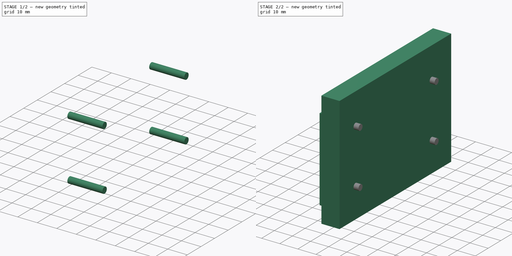
[diagram: build sequence overview — one tinted view per stage of 2, left to right]
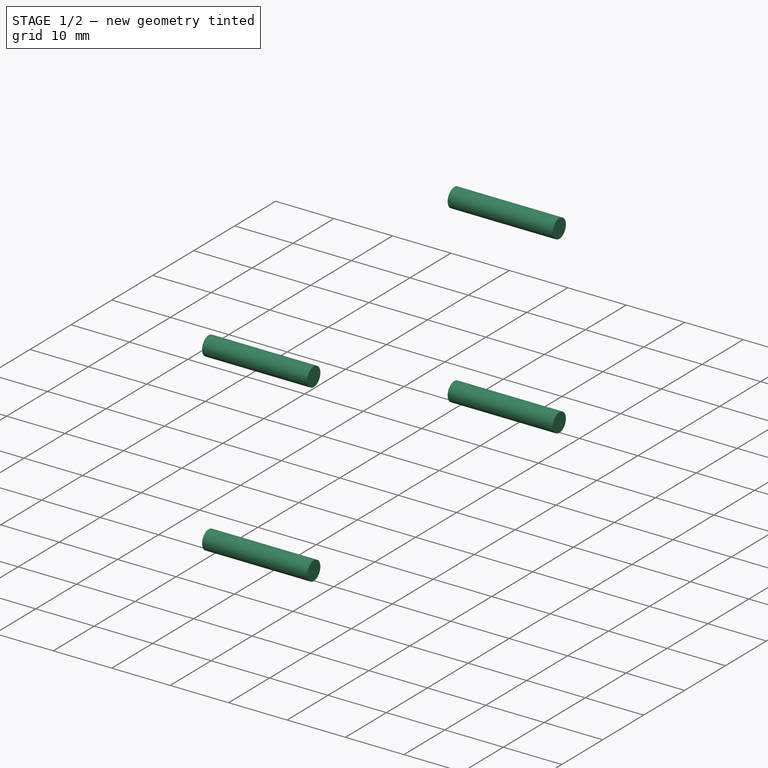
[diagram: stage 1 of 2 — iso view after this stage's code; geometry added in this stage tinted green]
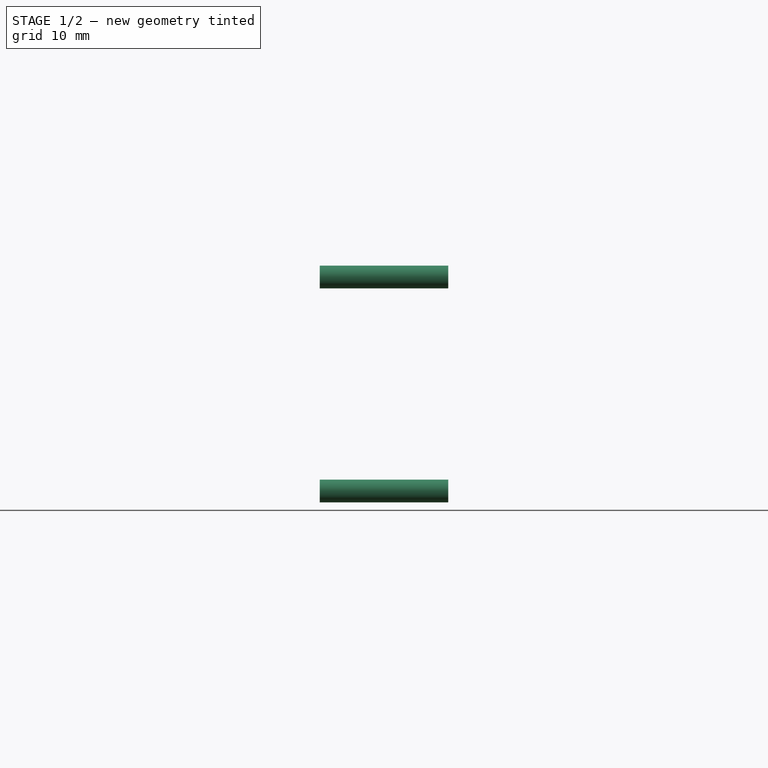
[diagram: stage 1 of 2 — front view after this stage's code; geometry added in this stage tinted green]
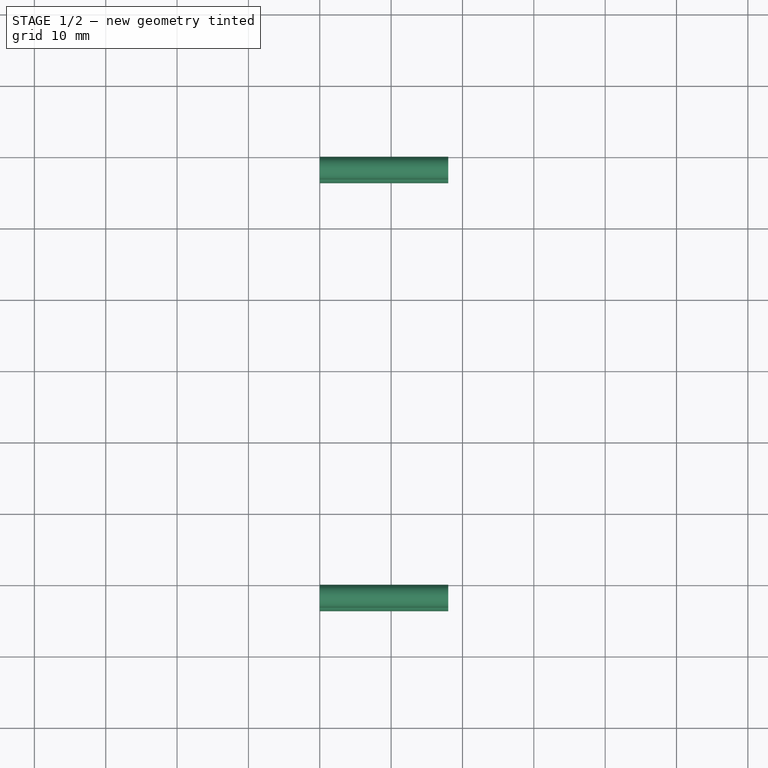
[diagram: stage 1 of 2 — top view after this stage's code; geometry added in this stage tinted green]
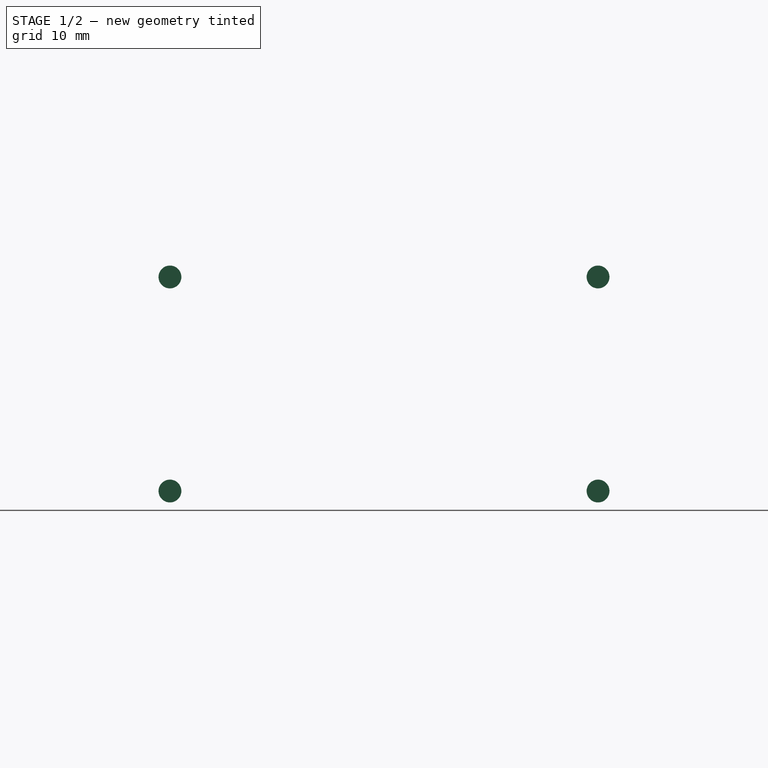
[diagram: stage 1 of 2 — right view after this stage's code; geometry added in this stage tinted green]
FCSTD DOCUMENT  (FreeCAD 0.17R13522 (Git))
Label: PlateX_02
License: All rights reserved
LicenseURL: http://en.wikipedia.org/wiki/All_rights_reserved
objects: Sketcher::SketchObject×2, Part::Extrusion×2, PartDesign::Body×1
note: 5 computed .brp shape members not serialized (recipe doc carries the construction recipe); baked Part::Feature solids carry a one-line shape summary decoded from their .brp

FEATURE [Sketcher::SketchObject] Sketch001
  MapMode = 5
  Placement = pos=(0,0,0) rot=(0.57735,0.57735,0.57735;2.0944rad)
  Support = -> [YZ_Plane]
  sketch-geometry (8):
    g0: Circle CenterX=-52.0346 CenterY=60.9435 CenterZ=0 NormalX=0 NormalY=0 NormalZ=1 AngleXU=0 Radius=1.6
    g1: Circle CenterX=7.96544 CenterY=60.9435 CenterZ=0 NormalX=0 NormalY=0 NormalZ=1 AngleXU=0 Radius=1.6
    g2: Circle CenterX=-52.0346 CenterY=30.9435 CenterZ=0 NormalX=0 NormalY=0 NormalZ=1 AngleXU=0 Radius=1.6
    g3: Circle CenterX=7.96544 CenterY=30.9435 CenterZ=0 NormalX=0 NormalY=0 NormalZ=1 AngleXU=0 Radius=1.6
    g4: GeomPoint X=23.3379 Y=78.2379 Z=0
    g5: GeomPoint X=-64.6621 Y=78.2379 Z=0
    g6: GeomPoint X=-64.6621 Y=14.3379 Z=0
    g7: GeomPoint X=23.3379 Y=14.3379 Z=0
  constraints (16):
    c: Radius(g0) = 1.6
    c: Equal(g2,g3)
    c: Equal(g3,g1)
    c: Equal(g1,g0)
    c: Vertical(g0,g2)
    c: Horizontal(g1,g0)
    c: Horizontal(g3,g2)
    c: Vertical(g1,g3)
    c: Distance(g0,g2) = 30
    c: Distance(g2,g3) = 60
    c: DistanceX(g6,g5) = 0
    c: DistanceY(g6,g5) = 63.9
    c: DistanceX(g4,g7) = 0
    c: DistanceY(g4,g7) = -63.9
    c: DistanceX(g4,g5) = -88
    c: DistanceY(g4,g5) = 0
FEATURE [PartDesign::Body] Body
  Group = -> [Sketch001]
  Origin = -> Origin
  Placement = pos=(40,0,0) rot=(0,0,1;0rad)
FEATURE [Part::Extrusion] Extrude001
  Base = -> Sketch001
  Dir = (1,0,0)
  DirMode = 2
  FaceMakerClass = Part::FaceMakerBullseye
  LengthFwd = 18
  LengthRev = 0
  Solid = true
  Symmetric = false
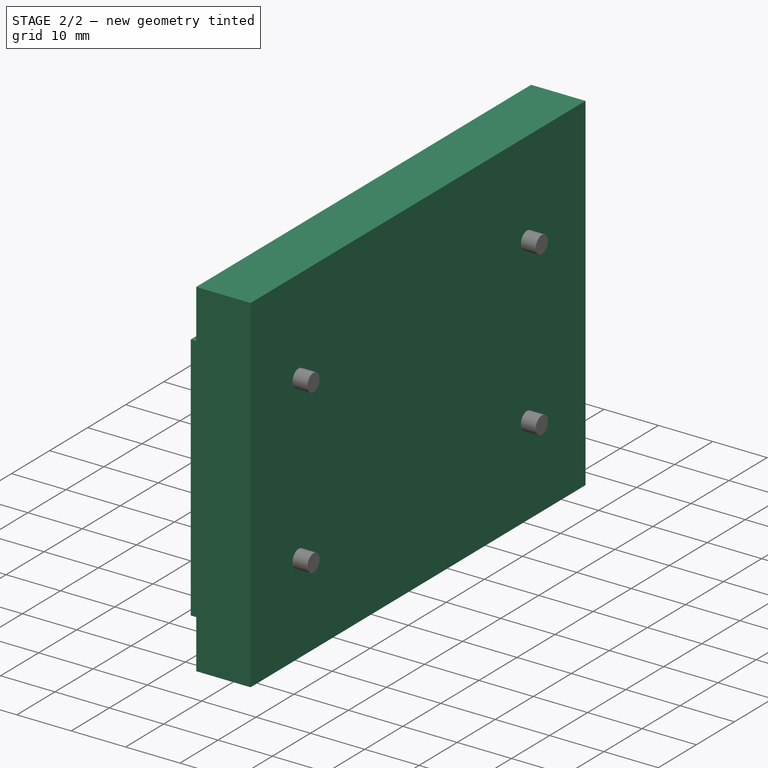
[diagram: stage 2 of 2 — iso view after this stage's code; geometry added in this stage tinted green]
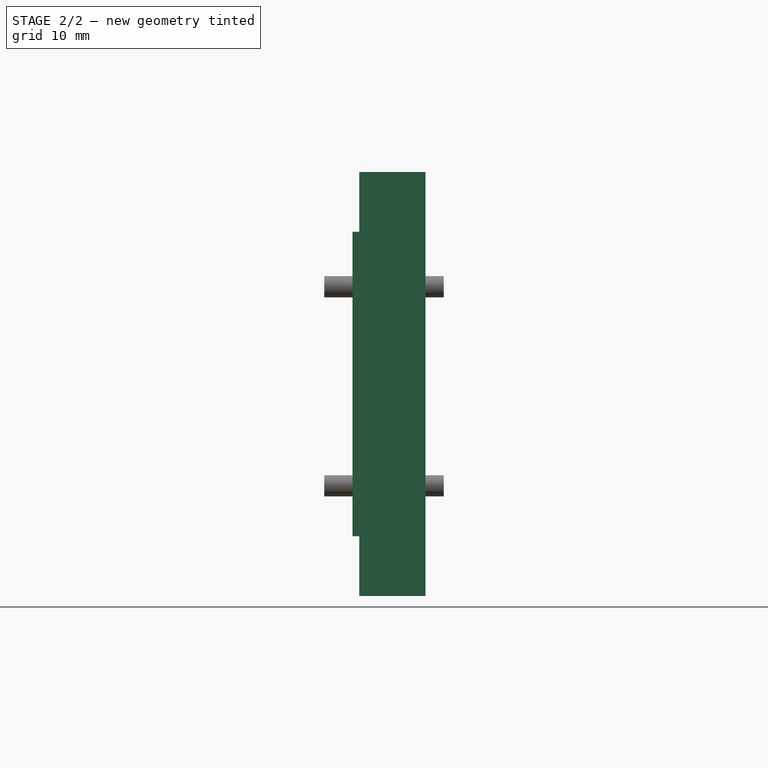
[diagram: stage 2 of 2 — front view after this stage's code; geometry added in this stage tinted green]
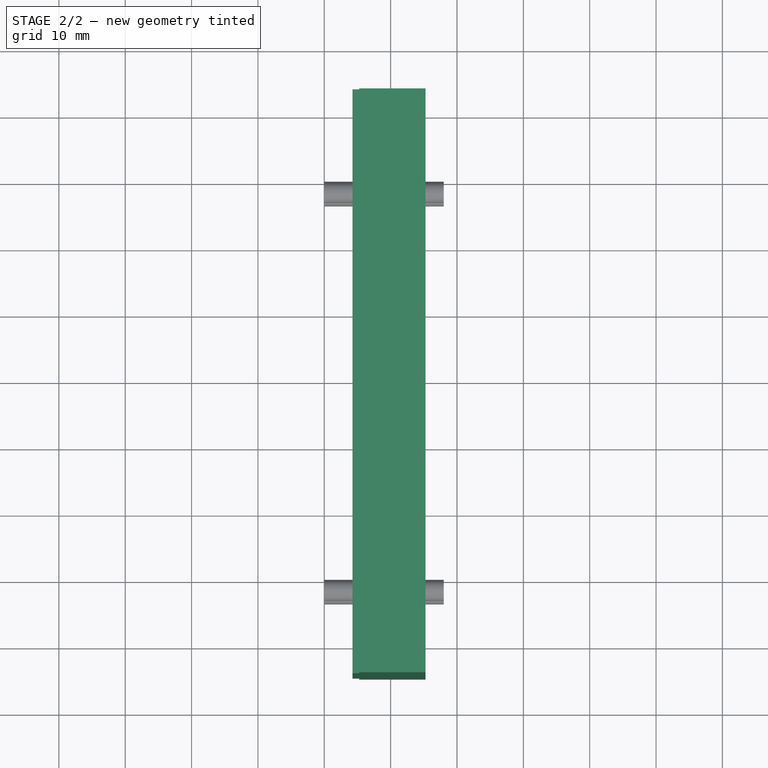
[diagram: stage 2 of 2 — top view after this stage's code; geometry added in this stage tinted green]
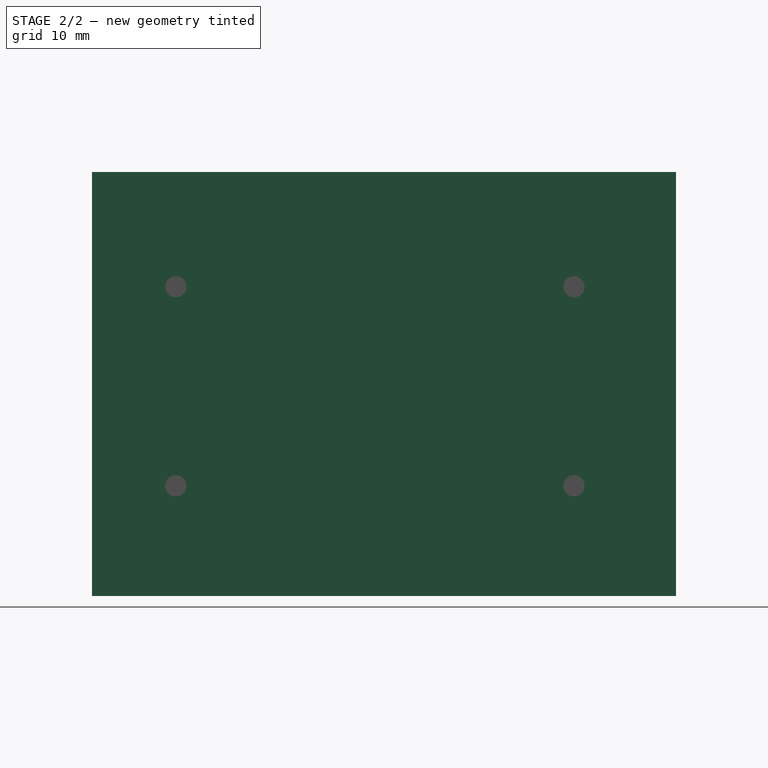
[diagram: stage 2 of 2 — right view after this stage's code; geometry added in this stage tinted green]
FEATURE [Sketcher::SketchObject] Sketch
  MapMode = 7
  Placement = pos=(40.1304,23.3379,0) rot=(1,0,0;1.5708rad)
  sketch-geometry (8):
    g0: LineSegment StartX=40.1304 StartY=23.3379 StartZ=0 EndX=40.1304 EndY=69.2379 EndZ=0
    g1: LineSegment StartX=40.1304 StartY=69.2379 StartZ=0 EndX=41.1304 EndY=69.2379 EndZ=0
    g2: LineSegment StartX=41.1304 StartY=69.2379 StartZ=0 EndX=41.1304 EndY=78.2379 EndZ=0
    g3: LineSegment StartX=41.1304 StartY=78.2379 StartZ=0 EndX=51.1304 EndY=78.2379 EndZ=0
    g4: LineSegment StartX=51.1304 StartY=78.2379 StartZ=0 EndX=51.1304 EndY=14.3379 EndZ=0
    g5: LineSegment StartX=51.1304 StartY=14.3379 StartZ=0 EndX=41.1304 EndY=14.3379 EndZ=0
    g6: LineSegment StartX=41.1304 StartY=14.3379 StartZ=0 EndX=41.1304 EndY=23.3379 EndZ=0
    g7: LineSegment StartX=41.1304 StartY=23.3379 StartZ=0 EndX=40.1304 EndY=23.3379 EndZ=0
  constraints (23):
    c: Vertical(g0)
    c: Coincident(g0,g1)
    c: Horizontal(g1)
    c: Coincident(g1,g2)
    c: Coincident(g2,g3)
    c: Horizontal(g3)
    c: Coincident(g3,g4)
    c: Coincident(g4,g5)
    c: Coincident(g5,g6)
    c: Vertical(g6)
    c: Coincident(g6,g7)
    c: Coincident(g7,g0)
    c: Vertical(g2)
    c: Vertical(g4)
    c: Horizontal(g5)
    c: Horizontal(g7)
    c: Equal(g2,g6)
    c: Equal(g3,g5)
    c: Equal(g1,g7)
    c: DistanceY(g0,g0) = 45.9
    c: DistanceY(g2,g2) = 9
    c: DistanceX(g7,g7) = 1
    c: DistanceX(g3,g3) = 10
FEATURE [Part::Extrusion] Extrude  label="PlateX_02"
  Base = -> Sketch
  Dir = (0,-1,0)
  DirMode = 2
  FaceMakerClass = Part::FaceMakerBullseye
  LengthFwd = 88
  LengthRev = 0
  Placement = pos=(-76,0,0) rot=(0,0,1;0rad)
  Solid = true
  Symmetric = false
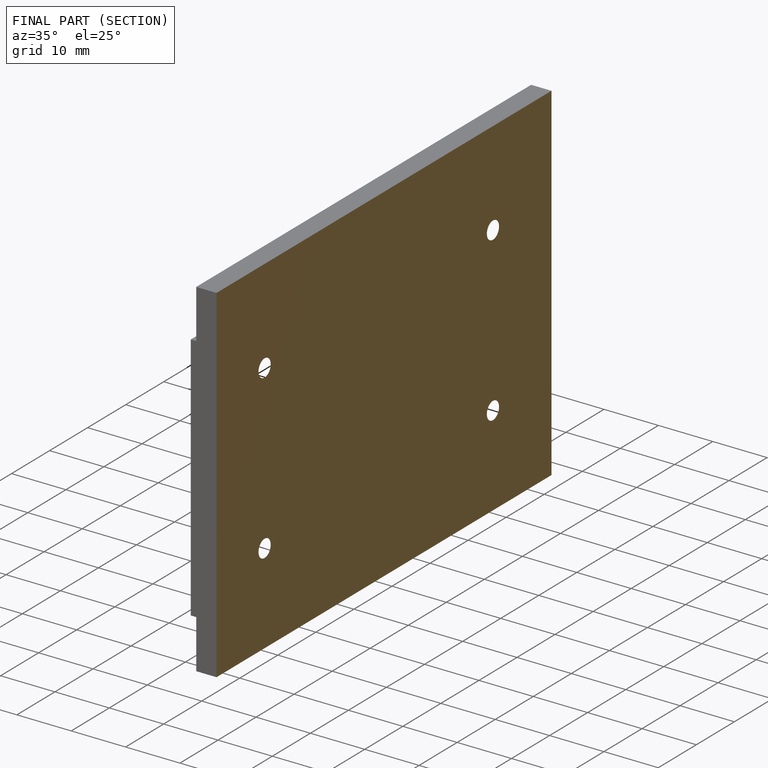
[diagram: finished part — half-section view (interior)]
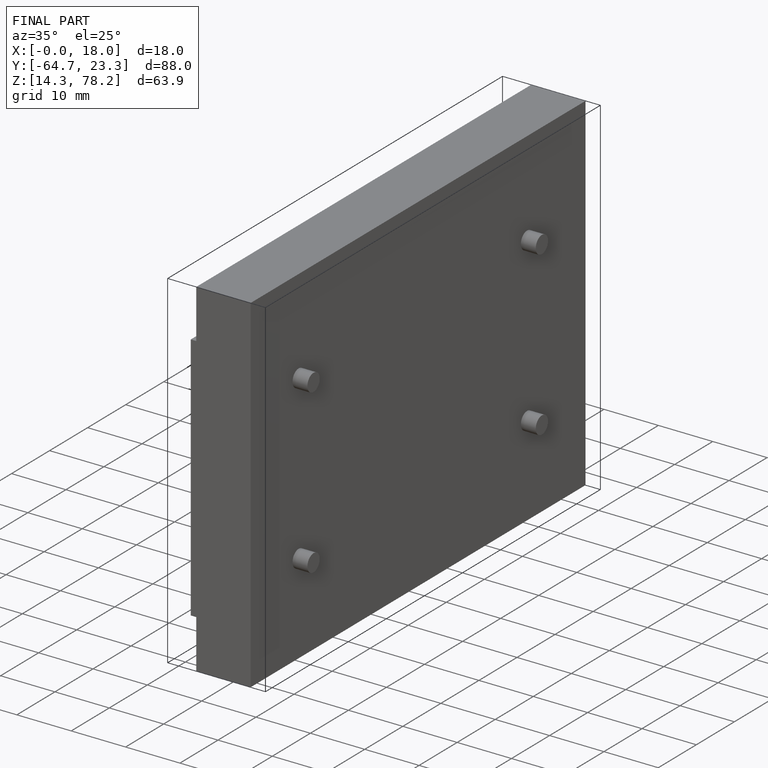
[diagram: finished part — iso view with bounding-box wireframe]
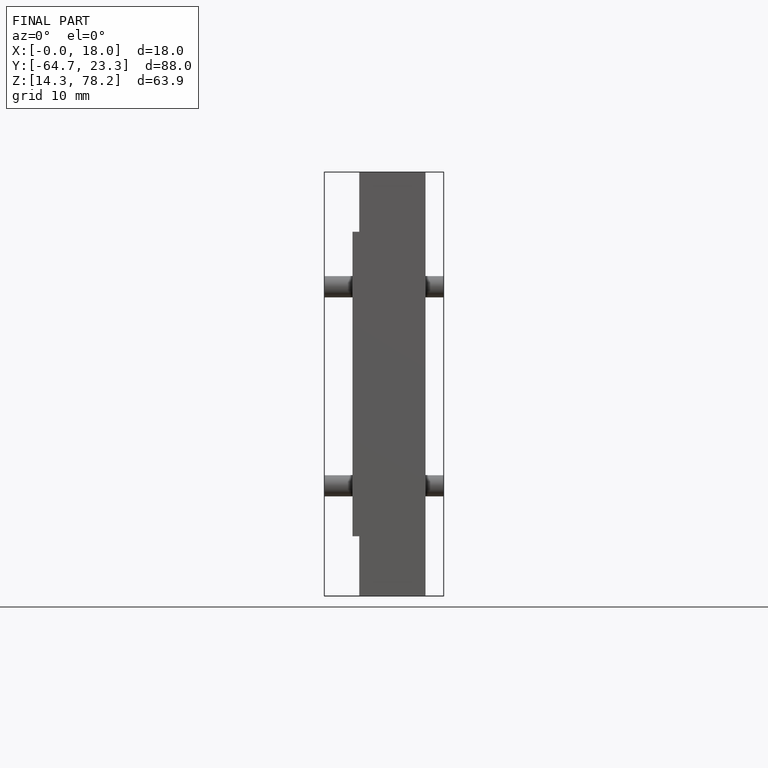
[diagram: finished part — front view with bounding-box wireframe]
